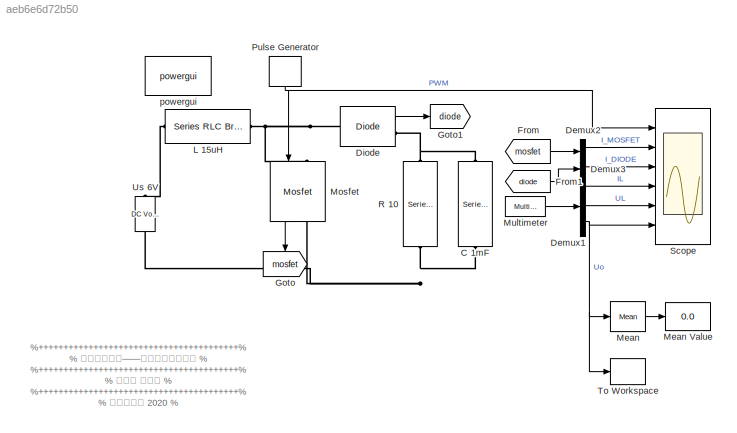
MODEL slx_aeb6e6d72b50
KIND model
BLOCK [From]  From
  CloseFcn = tagdialog Close
  GotoTag = mosfet
BLOCK [Reference] C 1mF  REF=powerlib/Elements/Series RLC Branch
  BranchType = C
  Capacitance = 1000e-6
  Inductance = 1e-3
  InitialCurrent = 0
  InitialVoltage = 0
  LConnTagsString = __new0
  Measurements = Branch voltage
  Ports = [0, 0, 0, 0, 0, 1, 1]
  RConnTagsString = __new0
  Resistance = 1
  SetiL0 = off
  Setx0 = off
  SourceBlock = powerlib/Elements/Series RLC Branch
  SourceType = Series RLC Branch
BLOCK [Demux] Demux1
  DisplayOption = bar
  Outputs = 3
  Ports = [1, 3]
BLOCK [Demux] Demux2
  DisplayOption = bar
  Outputs = 2
  Ports = [1, 2]
BLOCK [Demux] Demux3
  DisplayOption = bar
  Outputs = 2
  Ports = [1, 2]
BLOCK [Reference] Diode  REF=powerlib/Power
Electronics/Diode
  Cs = Inf
  IC = 0
  Lon = 1e-8
  Measurements = on
  Ports = [0, 1, 0, 0, 0, 1, 1]
  Ron = 0.001
  Rs = 1e5
  SourceBlock = powerlib/Power\nElectronics/Diode
  SourceType = Diode
  UseSnubber = off
  Vf = 0.7
BLOCK [From] From1
  CloseFcn = tagdialog Close
  GotoTag = diode
BLOCK [Goto] Goto
  GotoTag = mosfet
BLOCK [Goto] Goto1
  GotoTag = diode
BLOCK [Reference] L 15uH  REF=powerlib/Elements/Series RLC Branch
  BranchType = L
  Capacitance = 1e-6
  Inductance = 15e-6
  InitialCurrent = 0
  InitialVoltage = 0
  LConnTagsString = __new0
  Measurements = Branch voltage and current
  Ports = [0, 0, 0, 0, 0, 1, 1]
  RConnTagsString = __new0
  Resistance = 1
  SetiL0 = off
  Setx0 = off
  SourceBlock = powerlib/Elements/Series RLC Branch
  SourceType = Series RLC Branch
BLOCK [Reference] Mean  REF=powerlib_meascontrol/Measurements/Mean
  Freq = 60
  Ports = [1, 1]
  SourceBlock = powerlib_meascontrol/Measurements/Mean
  SourceType = Mean
  Ts = 0
  Vinit = 0
BLOCK [Display] Mean Value
  Decimation = 1
  Format = bank
  Ports = [1]
BLOCK [Reference] Mosfet  REF=powerlib/Power
Electronics/Mosfet
  Cs = inf
  IC = 0
  Lon = 0
  Measurements = on
  Ports = [1, 1, 0, 0, 0, 1, 1]
  Rd = 0.01
  Ron = 0.1
  Rs = 1e5
  SourceBlock = powerlib/Power\nElectronics/Mosfet
  SourceType = Mosfet
  Vfd = 0
BLOCK [Reference] Multimeter  REF=powerlib/Measurements/Multimeter
  AxesSetting = [0,0.1,-100,100]
  Display = 0
  Gain = [1 1 1]
  L = 4
  OutputType = Complex
  PSBOutputType = 1
  PSBequivalent = 0
  PhasorSimulation = off
  Ports = [0, 1]
  SavedBlockNames = -11
  SourceBlock = powerlib/Measurements/Multimeter
  SourceType = MultimeterPSB
  sel = [3 2 1]
  yselected = {'Ib: L 15uH','Ub: L 15uH','Ub: C 1mF'};
BLOCK [DiscretePulseGenerator] Pulse Generator
  Period = 25e-6
  Ports = [0, 1]
  PulseType = Time based
  PulseWidth = 60
BLOCK [Reference] R 10  REF=powerlib/Elements/Series RLC Branch
  BranchType = R
  Capacitance = 1e-6
  Inductance = 1e-3
  InitialCurrent = 0
  InitialVoltage = 0
  LConnTagsString = __new0
  Measurements = Branch current
  Ports = [0, 0, 0, 0, 0, 1, 1]
  RConnTagsString = __new0
  Resistance = 10
  SetiL0 = off
  Setx0 = off
  SourceBlock = powerlib/Elements/Series RLC Branch
  SourceType = Series RLC Branch
BLOCK [Scope] Scope
  Floating = off
  LimitDataPoints = off
  MaxDataPoints = 7000
  NumInputPorts = 6
  Ports = [6]
  ShowLegends = off
  TimeRange = 0.005
  YMax = 2~10~10~10~5~5
  YMin = -2~0~0~0~-5~-5
  ZoomMode = xonly
BLOCK [ToWorkspace] To Workspace
  FixptAsFi = on
  MaxDataPoints = inf
  Ports = [1]
  SampleTime = -1
  Save2DSignal = 3-D array (concatenate along third dimension)
  SaveFormat = Timeseries
  VariableName = Uo
BLOCK [Reference] Us 6V  REF=powerlib/Electrical
Sources/DC Voltage Source
  Amplitude = 6
  Measurements = None
  Ports = [0, 0, 0, 0, 0, 1, 1]
  SourceBlock = powerlib/Electrical\nSources/DC Voltage Source
  SourceType = DC Voltage Source
BLOCK [Reference] powergui  REF=powerlib/powergui
  DisableRonSwitches = off
  DisableSnubberDevices = on
  DisableVfSwitches = off
  DisplayEquations = off
  DisplayStyle = 1
  EnableUseOfTLC = off
  ErrMax = 1e-4
  Frange = [0:2:500]
  FreqAxis = off
  FunctionMessages = off
  HookPort = off
  Interpol = off
  Iterations = 50
  MaxFrequency = 1000
  Pbase = 100e6
  Ports = []
  Priority = 1
  ResistiveCurrentMeasurement = off
  RestoreLinks = warning
  RmsSteady = 1
  SPID = on
  SampleTime = Ts
  ShowGrid = off
  SolverType = Tustin/Backward Euler (TBE)
  SourceBlock = powerlib/powergui
  SourceType = PSB option menu block
  StartTime = 0.0
  SwTol = 0
  Ts = 100
  UnitsV = kV
  UnitsW = MW
  UserDataPersistent = on
  Xlog = on
  Ylog = off
  ZoomFFT = off
  cycles = 1
  display = off
  echomessages = off
  frequency = 60
  frequencyindice = 0
  frequencyindicesteady = 1
  fundamental = 60
  methode = off
  save = off
  structure = 0
  variable = ZData
  x0status = blocks
ANNOTATION (root): %++++++++++++++++++++++++++++++++++++++++% % 模拟电路基础——从系统级到电路级 % %++++++++++++++++++++++++++++++++++++++++% % 陈抗生 周金芳 % %++++++++++++++++++++++++++++++++++++++++% % 科学出版社 2020 % %++++++++++++++++++++++++++++++++++++++++%
LINE  From:1 -> Demux2:1
LINE Demux1:1 -> Scope:4
LINE Demux1:2 -> Scope:5
NET Demux1:3 -> Mean:1, Scope:6, To Workspace:1
LINE Demux2:1 -> Scope:2
LINE Demux3:1 -> Scope:3
LINE Diode:1 -> Goto1:1
LINE From1:1 -> Demux3:1
LINE Mean:1 -> Mean Value:1
LINE Mosfet:1 -> Goto:1
LINE Multimeter:1 -> Demux1:1
NET Pulse Generator:1 -> Mosfet:1, Scope:1
PNET net1: C 1mF:LConn1 -- Diode:RConn1 -- R 10:LConn1
PNET net2: C 1mF:RConn1 -- Mosfet:RConn1 -- R 10:RConn1 -- Us 6V:LConn1
PNET net3: Diode:LConn1 -- L 15uH:RConn1 -- Mosfet:LConn1
PLINE L 15uH:LConn1 -- Us 6V:RConn1
note: NET lines group one-source signal fan-out (src -> all destinations, sorted); 1:1 wires keep LINE; PNET lines group multi-terminal physical nets as a canonical sorted terminal list (undirected conserving connections); 2-terminal nets keep the pairwise PLINE form
